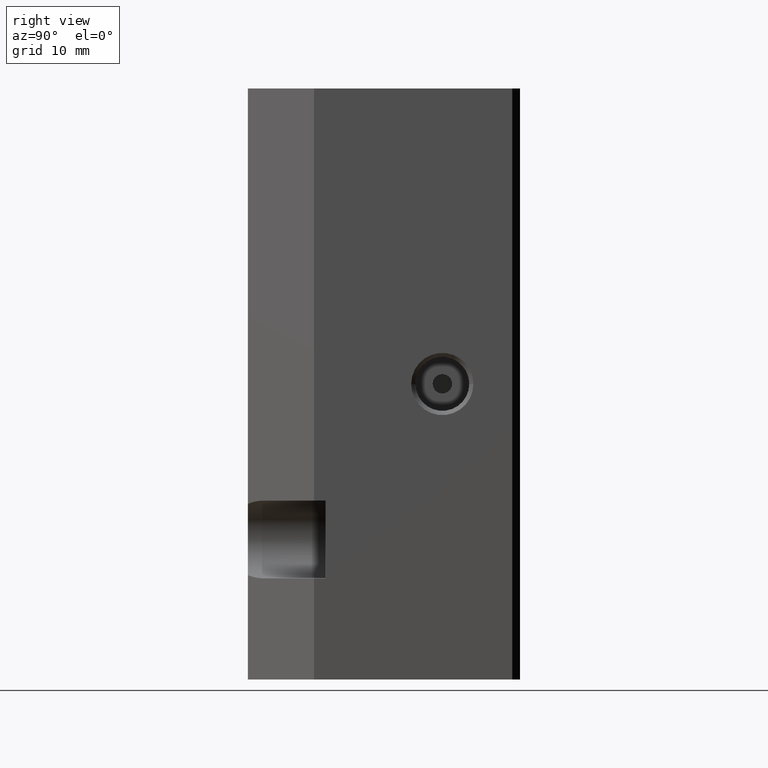
[diagram: clean part render]
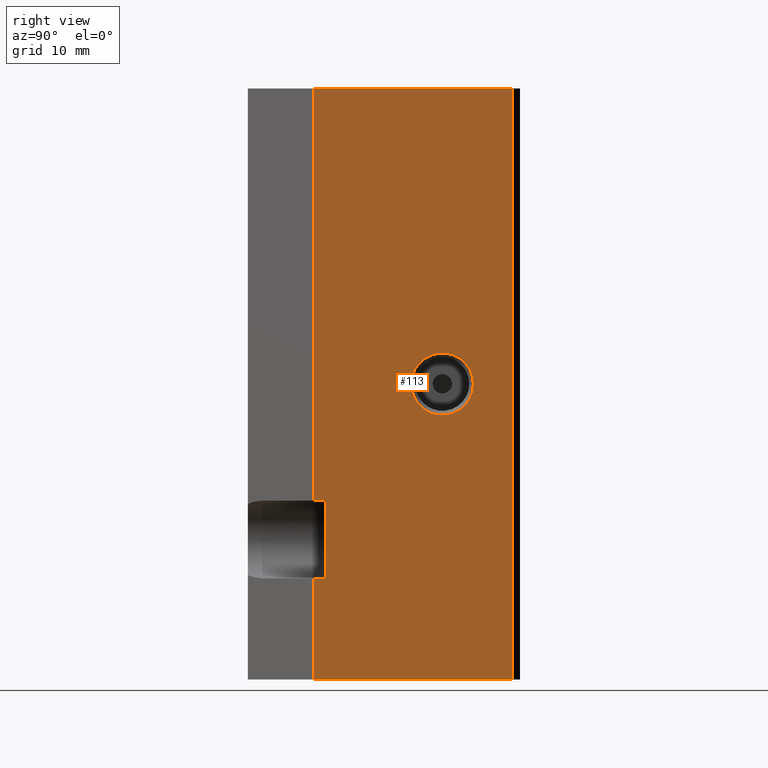
[diagram: same view with one face highlighted and labeled with its STEP entity id]
A machine part, right view. The second image highlights one B-rep face of the part: STEP entity #113.
In plain terms, the highlighted planar face has unit normal (1, 0, 0).
Its self-contained STEP definition (entity closure, byte-faithful):
#113 = ADVANCED_FACE( '', ( #220, #221 ), #222, .T. );
#220 = FACE_BOUND( '', #363, .T. );
#221 = FACE_OUTER_BOUND( '', #364, .T. );
#222 = PLANE( '', #365 );
#363 = EDGE_LOOP( '', ( #701, #702 ) );
#364 = EDGE_LOOP( '', ( #703, #704, #705, #706, #707, #708, #709, #710 ) );
#365 = AXIS2_PLACEMENT_3D( '', #711, #712, #713 );
#701 = ORIENTED_EDGE( '', *, *, #979, .T. );
#702 = ORIENTED_EDGE( '', *, *, #965, .T. );
#703 = ORIENTED_EDGE( '', *, *, #993, .T. );
#704 = ORIENTED_EDGE( '', *, *, #1003, .T. );
#705 = ORIENTED_EDGE( '', *, *, #1009, .T. );
#706 = ORIENTED_EDGE( '', *, *, #1018, .F. );
#707 = ORIENTED_EDGE( '', *, *, #1022, .T. );
#708 = ORIENTED_EDGE( '', *, *, #1023, .T. );
#709 = ORIENTED_EDGE( '', *, *, #1024, .T. );
#710 = ORIENTED_EDGE( '', *, *, #1019, .F. );
#711 = CARTESIAN_POINT( '', ( 21.5000000000000, 34.0000000000000, 0.000000000000000 ) );
#712 = DIRECTION( '', ( 1.00000000000000, 0.000000000000000, 0.000000000000000 ) );
#713 = DIRECTION( '', ( 0.000000000000000, 1.00000000000000, 0.000000000000000 ) );
#965 = EDGE_CURVE( '', #1165, #1162, #1166, .T. );
#979 = EDGE_CURVE( '', #1162, #1165, #1187, .T. );
#993 = EDGE_CURVE( '', #1199, #1203, #1205, .T. );
#1003 = EDGE_CURVE( '', #1203, #1223, #1224, .T. );
#1009 = EDGE_CURVE( '', #1223, #1231, #1233, .T. );
#1018 = EDGE_CURVE( '', #1246, #1231, #1248, .T. );
#1019 = EDGE_CURVE( '', #1199, #1249, #1250, .T. );
#1022 = EDGE_CURVE( '', #1246, #1254, #1255, .T. );
#1023 = EDGE_CURVE( '', #1254, #1256, #1257, .T. );
#1024 = EDGE_CURVE( '', #1256, #1249, #1258, .T. );
#1162 = VERTEX_POINT( '', #1436 );
#1165 = VERTEX_POINT( '', #1440 );
#1166 = CIRCLE( '', #1441, 4.00000000000000 );
#1187 = CIRCLE( '', #1509, 4.00000000000000 );
#1199 = VERTEX_POINT( '', #1521 );
#1203 = VERTEX_POINT( '', #1527 );
#1205 = LINE( '', #1530, #1531 );
#1223 = VERTEX_POINT( '', #1553 );
#1224 = LINE( '', #1554, #1555 );
#1231 = VERTEX_POINT( '', #1566 );
#1233 = LINE( '', #1569, #1570 );
#1246 = VERTEX_POINT( '', #1587 );
#1248 = LINE( '', #1590, #1591 );
#1249 = VERTEX_POINT( '', #1592 );
#1250 = LINE( '', #1593, #1594 );
#1254 = VERTEX_POINT( '', #1600 );
#1255 = LINE( '', #1601, #1602 );
#1256 = VERTEX_POINT( '', #1603 );
#1257 = LINE( '', #1604, #1605 );
#1258 = LINE( '', #1606, #1607 );
#1436 = CARTESIAN_POINT( '', ( 21.5000000000000, 21.0000000000000, 38.0000000000000 ) );
#1440 = CARTESIAN_POINT( '', ( 21.5000000000000, 29.0000000000000, 38.0000000000000 ) );
#1441 = AXIS2_PLACEMENT_3D( '', #1785, #1786, #1787 );
#1509 = AXIS2_PLACEMENT_3D( '', #1811, #1812, #1813 );
#1521 = CARTESIAN_POINT( '', ( 21.5000000000000, 8.50000000000000, 23.0000000000000 ) );
#1527 = CARTESIAN_POINT( '', ( 21.5000000000000, 10.0000000000000, 23.0000000000000 ) );
#1530 = CARTESIAN_POINT( '', ( 21.5000000000000, 17.0000000000000, 23.0000000000000 ) );
#1531 = VECTOR( '', #1847, 1.00000000000000 );
#1553 = CARTESIAN_POINT( '', ( 21.5000000000000, 10.0000000000000, 13.0000000000000 ) );
#1554 = CARTESIAN_POINT( '', ( 21.5000000000000, 10.0000000000000, 0.000000000000000 ) );
#1555 = VECTOR( '', #1867, 1.00000000000000 );
#1566 = CARTESIAN_POINT( '', ( 21.5000000000000, 8.50000000000000, 13.0000000000000 ) );
#1569 = CARTESIAN_POINT( '', ( 21.5000000000000, 17.0000000000000, 13.0000000000000 ) );
#1570 = VECTOR( '', #1873, 1.00000000000000 );
#1587 = CARTESIAN_POINT( '', ( 21.5000000000000, 8.50000000000000, 0.000000000000000 ) );
#1590 = CARTESIAN_POINT( '', ( 21.5000000000000, 8.50000000000000, 0.000000000000000 ) );
#1591 = VECTOR( '', #1888, 1.00000000000000 );
#1592 = CARTESIAN_POINT( '', ( 21.5000000000000, 8.50000000000000, 76.0000000000000 ) );
#1593 = CARTESIAN_POINT( '', ( 21.5000000000000, 8.50000000000000, 0.000000000000000 ) );
#1594 = VECTOR( '', #1889, 1.00000000000000 );
#1600 = CARTESIAN_POINT( '', ( 21.5000000000000, 34.0000000000000, 0.000000000000000 ) );
#1601 = CARTESIAN_POINT( '', ( 21.5000000000000, 8.50000000000000, 0.000000000000000 ) );
#1602 = VECTOR( '', #1892, 1.00000000000000 );
#1603 = CARTESIAN_POINT( '', ( 21.5000000000000, 34.0000000000000, 76.0000000000000 ) );
#1604 = CARTESIAN_POINT( '', ( 21.5000000000000, 34.0000000000000, 0.000000000000000 ) );
#1605 = VECTOR( '', #1893, 1.00000000000000 );
#1606 = CARTESIAN_POINT( '', ( 21.5000000000000, 8.50000000000000, 76.0000000000000 ) );
#1607 = VECTOR( '', #1894, 1.00000000000000 );
#1785 = CARTESIAN_POINT( '', ( 21.5000000000000, 25.0000000000000, 38.0000000000000 ) );
#1786 = DIRECTION( '', ( -1.00000000000000, -0.000000000000000, 0.000000000000000 ) );
#1787 = DIRECTION( '', ( 0.000000000000000, -1.00000000000000, 0.000000000000000 ) );
#1811 = CARTESIAN_POINT( '', ( 21.5000000000000, 25.0000000000000, 38.0000000000000 ) );
#1812 = DIRECTION( '', ( -1.00000000000000, -0.000000000000000, 0.000000000000000 ) );
#1813 = DIRECTION( '', ( 0.000000000000000, -1.00000000000000, 0.000000000000000 ) );
#1847 = DIRECTION( '', ( 0.000000000000000, 1.00000000000000, 0.000000000000000 ) );
#1867 = DIRECTION( '', ( 0.000000000000000, 0.000000000000000, -1.00000000000000 ) );
#1873 = DIRECTION( '', ( 0.000000000000000, -1.00000000000000, 0.000000000000000 ) );
#1888 = DIRECTION( '', ( 0.000000000000000, 0.000000000000000, 1.00000000000000 ) );
#1889 = DIRECTION( '', ( 0.000000000000000, 0.000000000000000, 1.00000000000000 ) );
#1892 = DIRECTION( '', ( 0.000000000000000, 1.00000000000000, 0.000000000000000 ) );
#1893 = DIRECTION( '', ( 0.000000000000000, 0.000000000000000, 1.00000000000000 ) );
#1894 = DIRECTION( '', ( -0.000000000000000, -1.00000000000000, -0.000000000000000 ) );